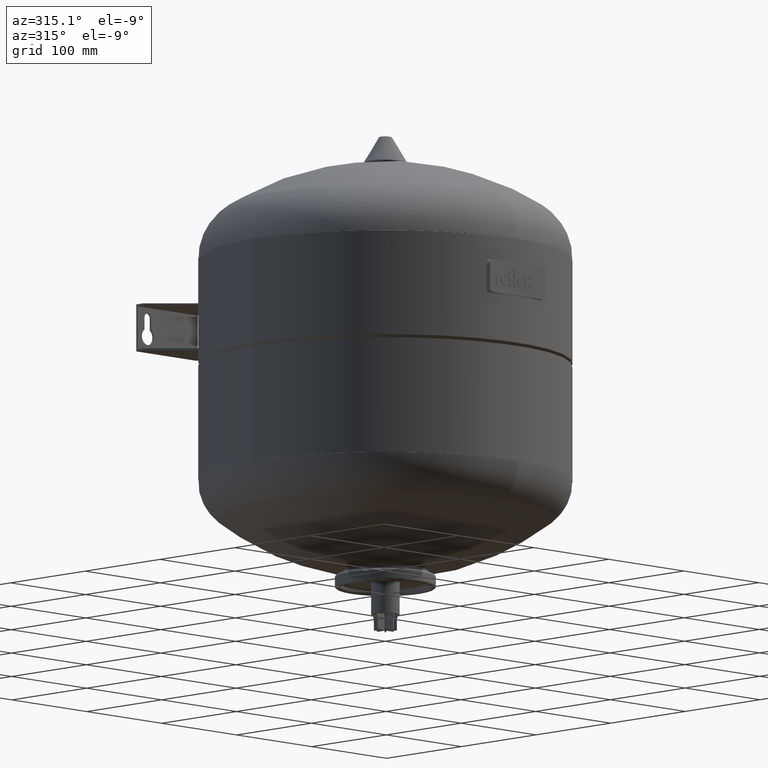
[diagram: clean part render]
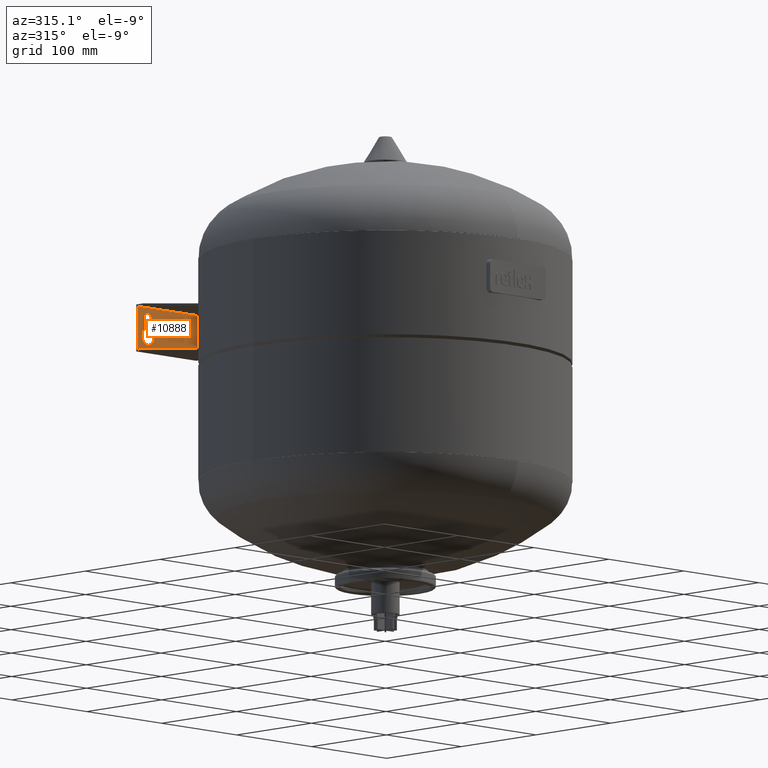
[diagram: same view with one face highlighted and labeled with its STEP entity id]
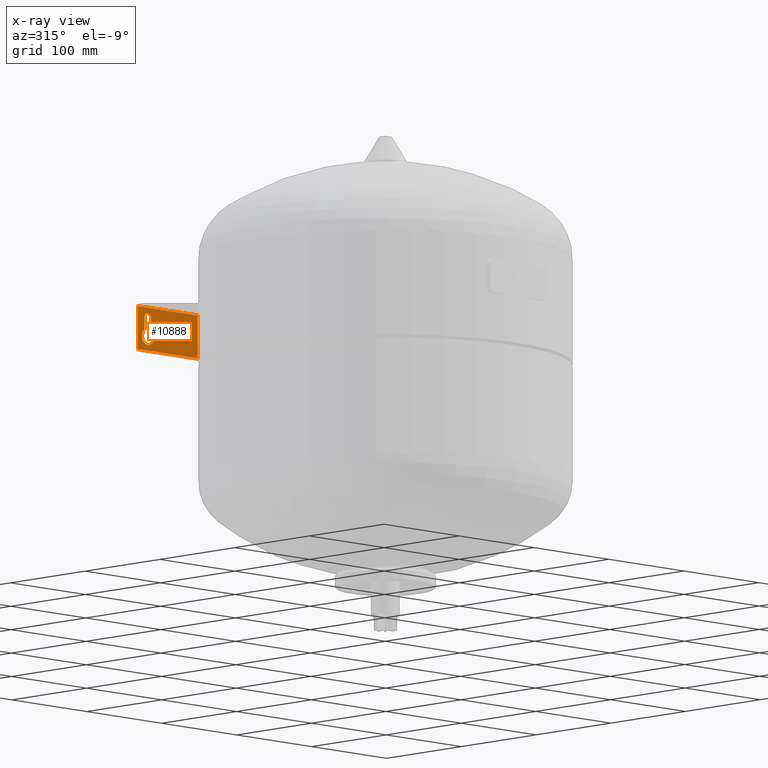
[diagram: x-ray of the same camera — body ghosted, the highlighted face saturated]
A machine part, auxiliary view. The second image highlights one B-rep face of the part: STEP entity #10888.
The next image is the same camera in x-ray: the body ghosted, the highlighted face saturated — about 0% of this face is hidden behind the body in this view.
In plain terms, the highlighted face is a freeform B-spline surface patch.
Its self-contained STEP definition (entity closure, byte-faithful):
#10380=CARTESIAN_POINT('',(-142.0,180.0,292.36437827765496));
#10381=VERTEX_POINT('',#10380);
#10382=CARTESIAN_POINT('',(-142.0,180.0,303.74999999999409));
#10383=VERTEX_POINT('',#10382);
#10384=CARTESIAN_POINT('',(-142.0,180.0,292.36437827765496));
#10385=DIRECTION('',(0.0,0.0,1.0));
#10386=VECTOR('',#10385,11.385621722339124);
#10387=LINE('',#10384,#10386);
#10388=EDGE_CURVE('',#10381,#10383,#10387,.T.);
#10420=CARTESIAN_POINT('',(-133.0,180.0,303.74999999999409));
#10421=VERTEX_POINT('',#10420);
#10422=CARTESIAN_POINT('',(-137.5,180.0,303.74999999999409));
#10423=DIRECTION('',(0.0,1.0,0.0));
#10424=DIRECTION('',(0.0,0.0,1.0));
#10425=AXIS2_PLACEMENT_3D('',#10422,#10423,#10424);
#10426=CIRCLE('',#10425,4.5);
#10427=EDGE_CURVE('',#10383,#10421,#10426,.T.);
#10453=CARTESIAN_POINT('',(-133.0,180.0,292.36437827765621));
#10454=VERTEX_POINT('',#10453);
#10455=CARTESIAN_POINT('',(-133.0,180.0,303.74999999999409));
#10456=DIRECTION('',(0.0,0.0,-1.0));
#10457=VECTOR('',#10456,11.385621722337874);
#10458=LINE('',#10455,#10457);
#10459=EDGE_CURVE('',#10421,#10454,#10458,.T.);
#10484=CARTESIAN_POINT('',(-137.49999999999909,180.0,285.74999999999409));
#10485=DIRECTION('',(0.0,1.0,0.0));
#10486=DIRECTION('',(1.377663E-013,0.0,-1.0));
#10487=AXIS2_PLACEMENT_3D('',#10484,#10485,#10486);
#10488=CIRCLE('',#10487,7.999999999999998);
#10489=EDGE_CURVE('',#10454,#10381,#10488,.T.);
#10729=CARTESIAN_POINT('',(-71.0,180.0,272.5));
#10730=VERTEX_POINT('',#10729);
#10737=CARTESIAN_POINT('',(-151.0,180.0,272.5));
#10738=VERTEX_POINT('',#10737);
#10739=CARTESIAN_POINT('',(-71.0,180.0,272.5));
#10740=DIRECTION('',(-1.0,0.0,0.0));
#10741=VECTOR('',#10740,80.0);
#10742=LINE('',#10739,#10741);
#10743=EDGE_CURVE('',#10730,#10738,#10742,.T.);
#10761=CARTESIAN_POINT('',(-151.0,180.0,313.5));
#10762=VERTEX_POINT('',#10761);
#10769=CARTESIAN_POINT('',(-71.0,180.0,313.5));
#10770=VERTEX_POINT('',#10769);
#10771=CARTESIAN_POINT('',(-71.0,180.0,313.5));
#10772=DIRECTION('',(-1.0,0.0,0.0));
#10773=VECTOR('',#10772,80.0);
#10774=LINE('',#10771,#10773);
#10775=EDGE_CURVE('',#10770,#10762,#10774,.T.);
#10810=CARTESIAN_POINT('',(-71.0,180.0,272.5));
#10811=DIRECTION('',(0.0,0.0,1.0));
#10812=VECTOR('',#10811,41.0);
#10813=LINE('',#10810,#10812);
#10814=EDGE_CURVE('',#10730,#10770,#10813,.T.);
#10852=CARTESIAN_POINT('',(-151.0,180.0,272.5));
#10853=DIRECTION('',(0.0,0.0,1.0));
#10854=VECTOR('',#10853,41.0);
#10855=LINE('',#10852,#10854);
#10856=EDGE_CURVE('',#10738,#10762,#10855,.T.);
#10871=CARTESIAN_POINT('',(-151.0,180.0,272.5));
#10872=CARTESIAN_POINT('',(-71.0,180.0,272.5));
#10873=CARTESIAN_POINT('',(-151.0,180.0,313.5));
#10874=CARTESIAN_POINT('',(-71.0,180.0,313.5));
#10875=B_SPLINE_SURFACE_WITH_KNOTS('',1,1,((#10871,#10873),(#10872,#10874)),.UNSPECIFIED.,.F.,.F.,.U.,(2,2),(2,2),(0.0,80.0),(0.0,41.0),.UNSPECIFIED.);
#10876=ORIENTED_EDGE('',*,*,#10856,.F.);
#10877=ORIENTED_EDGE('',*,*,#10743,.F.);
#10878=ORIENTED_EDGE('',*,*,#10814,.T.);
#10879=ORIENTED_EDGE('',*,*,#10775,.T.);
#10880=EDGE_LOOP('',(#10876,#10877,#10878,#10879));
#10881=FACE_OUTER_BOUND('',#10880,.T.);
#10882=ORIENTED_EDGE('',*,*,#10459,.T.);
#10883=ORIENTED_EDGE('',*,*,#10489,.T.);
#10884=ORIENTED_EDGE('',*,*,#10388,.T.);
#10885=ORIENTED_EDGE('',*,*,#10427,.T.);
#10886=EDGE_LOOP('',(#10882,#10883,#10884,#10885));
#10887=FACE_BOUND('',#10886,.T.);
#10888=ADVANCED_FACE('',(#10881,#10887),#10875,.T.);